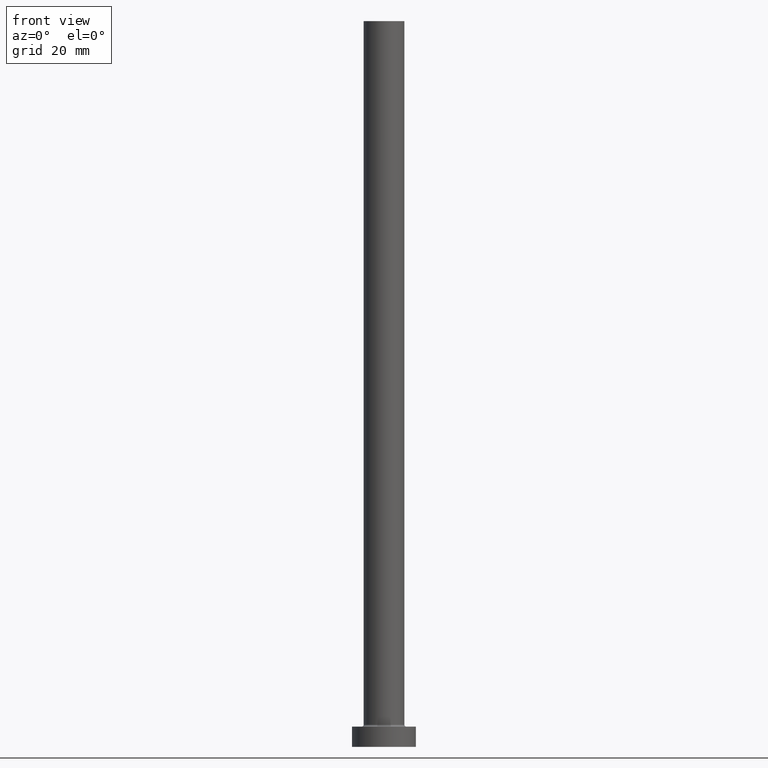
[diagram: clean part render]
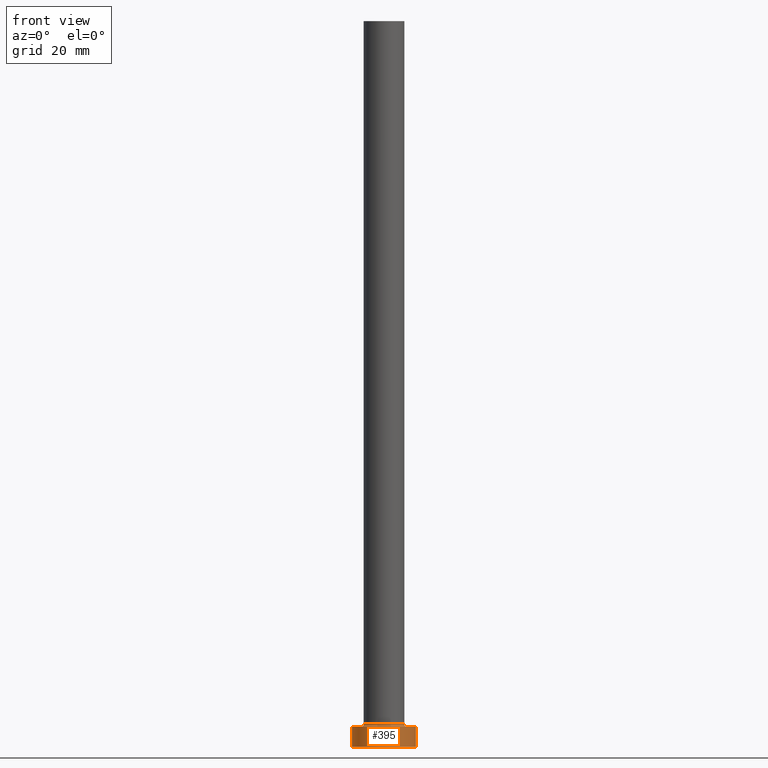
[diagram: same view with one face highlighted and labeled with its STEP entity id]
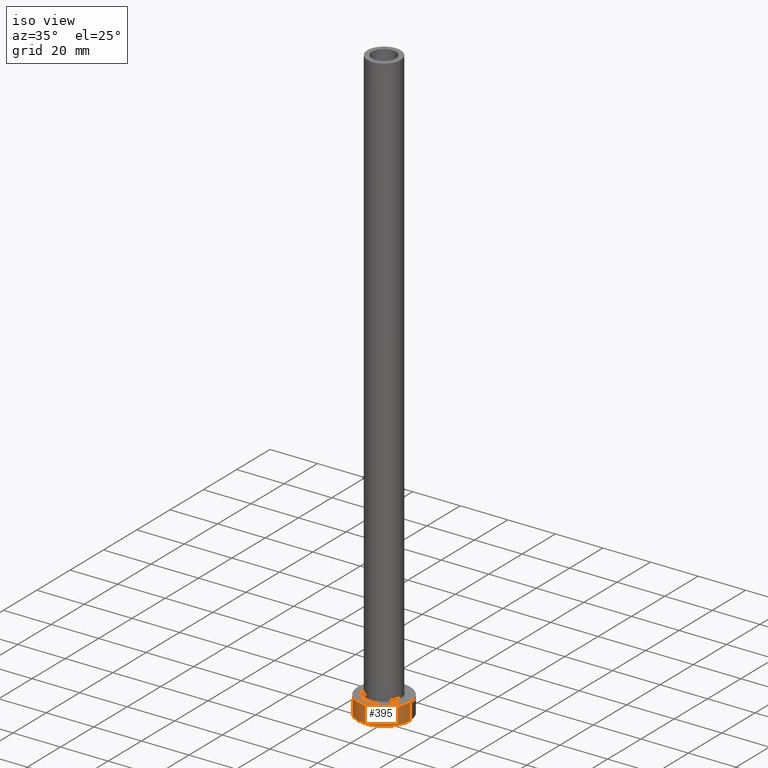
[diagram: same view with one face highlighted and labeled with its STEP entity id]
A machine part, front view. The second image highlights one B-rep face of the part: STEP entity #395.
A second angle (iso view) of the same face is appended — the face is thin or edge-on in the first view.
In plain terms, the highlighted cylindrical surface (edge-blend (fillet) strip) has radius 11 mm, axis along (-0, -0, -1).
Its self-contained STEP definition (entity closure, byte-faithful):
#58 = LINE ( 'NONE', #431, #104 ) ;
#87 = ORIENTED_EDGE ( 'NONE', *, *, #383, .F. ) ;
#93 = DIRECTION ( 'NONE',  ( -1.000000000000000000, 0.000000000000000000, 0.000000000000000000 ) ) ;
#99 = ORIENTED_EDGE ( 'NONE', *, *, #221, .T. ) ;
#104 = VECTOR ( 'NONE', #266, 1000.000000000000000 ) ;
#106 = VECTOR ( 'NONE', #125, 1000.000000000000000 ) ;
#114 = CARTESIAN_POINT ( 'NONE',  ( -11.00000000000000000, 0.000000000000000000, 7.000000000000000000 ) ) ;
#117 = CARTESIAN_POINT ( 'NONE',  ( 11.00000000000000000, 1.347111479062088405E-15, 0.000000000000000000 ) ) ;
#125 = DIRECTION ( 'NONE',  ( -0.000000000000000000, -0.000000000000000000, -1.000000000000000000 ) ) ;
#141 = EDGE_CURVE ( 'NONE', #162, #260, #58, .T. ) ;
#142 = AXIS2_PLACEMENT_3D ( 'NONE', #352, #318, #216 ) ;
#159 = CARTESIAN_POINT ( 'NONE',  ( 0.000000000000000000, 0.000000000000000000, 7.000000000000000000 ) ) ;
#162 = VERTEX_POINT ( 'NONE', #114 ) ;
#178 = CYLINDRICAL_SURFACE ( 'NONE', #321, 11.00000000000000000 ) ;
#183 = EDGE_LOOP ( 'NONE', ( #457, #87, #340, #99 ) ) ;
#186 = LINE ( 'NONE', #446, #106 ) ;
#192 = VERTEX_POINT ( 'NONE', #117 ) ;
#216 = DIRECTION ( 'NONE',  ( 1.000000000000000000, 0.000000000000000000, 0.000000000000000000 ) ) ;
#218 = CARTESIAN_POINT ( 'NONE',  ( -11.00000000000000000, 0.000000000000000000, 0.000000000000000000 ) ) ;
#219 = FACE_OUTER_BOUND ( 'NONE', #183, .T. ) ;
#221 = EDGE_CURVE ( 'NONE', #260, #192, #297, .T. ) ;
#245 = DIRECTION ( 'NONE',  ( 0.000000000000000000, 0.000000000000000000, 1.000000000000000000 ) ) ;
#253 = DIRECTION ( 'NONE',  ( 1.000000000000000000, 0.000000000000000000, 0.000000000000000000 ) ) ;
#260 = VERTEX_POINT ( 'NONE', #218 ) ;
#263 = VERTEX_POINT ( 'NONE', #364 ) ;
#266 = DIRECTION ( 'NONE',  ( -0.000000000000000000, -0.000000000000000000, -1.000000000000000000 ) ) ;
#295 = CARTESIAN_POINT ( 'NONE',  ( 0.000000000000000000, 0.000000000000000000, 0.000000000000000000 ) ) ;
#297 = CIRCLE ( 'NONE', #353, 11.00000000000000000 ) ;
#318 = DIRECTION ( 'NONE',  ( 0.000000000000000000, 0.000000000000000000, 1.000000000000000000 ) ) ;
#321 = AXIS2_PLACEMENT_3D ( 'NONE', #159, #376, #93 ) ;
#340 = ORIENTED_EDGE ( 'NONE', *, *, #141, .T. ) ;
#346 = CIRCLE ( 'NONE', #142, 11.00000000000000000 ) ;
#350 = EDGE_CURVE ( 'NONE', #263, #192, #186, .T. ) ;
#352 = CARTESIAN_POINT ( 'NONE',  ( 0.000000000000000000, 0.000000000000000000, 7.000000000000000000 ) ) ;
#353 = AXIS2_PLACEMENT_3D ( 'NONE', #295, #245, #253 ) ;
#364 = CARTESIAN_POINT ( 'NONE',  ( 11.00000000000000000, 1.347111479062088405E-15, 7.000000000000000000 ) ) ;
#376 = DIRECTION ( 'NONE',  ( -0.000000000000000000, -0.000000000000000000, -1.000000000000000000 ) ) ;
#383 = EDGE_CURVE ( 'NONE', #162, #263, #346, .T. ) ;
#395 = ADVANCED_FACE ( 'NONE', ( #219 ), #178, .T. ) ;
#431 = CARTESIAN_POINT ( 'NONE',  ( -11.00000000000000000, 0.000000000000000000, 7.000000000000000000 ) ) ;
#446 = CARTESIAN_POINT ( 'NONE',  ( 11.00000000000000000, 1.347111479062088405E-15, 7.000000000000000000 ) ) ;
#457 = ORIENTED_EDGE ( 'NONE', *, *, #350, .F. ) ;